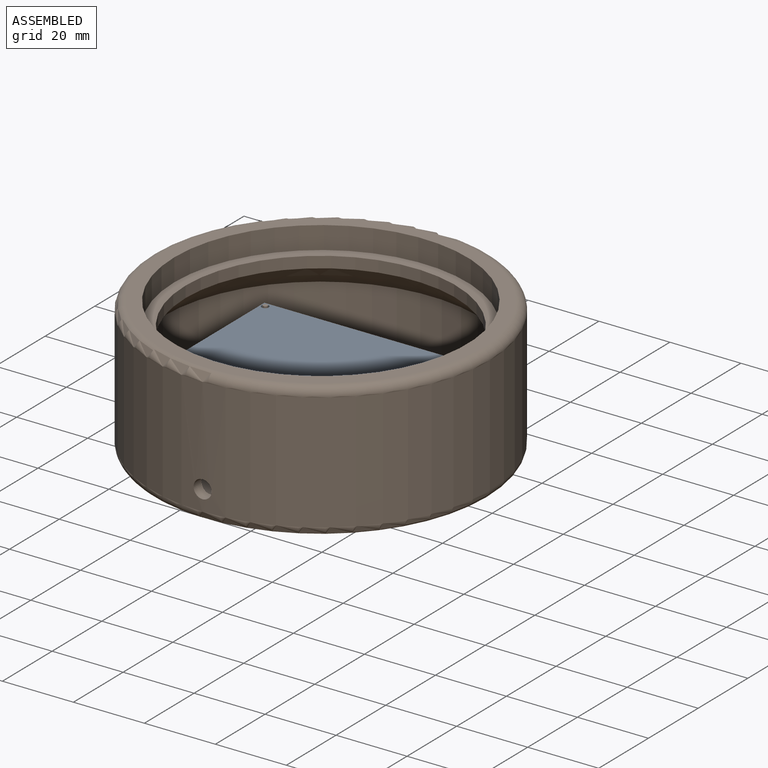
[diagram: assembled view]
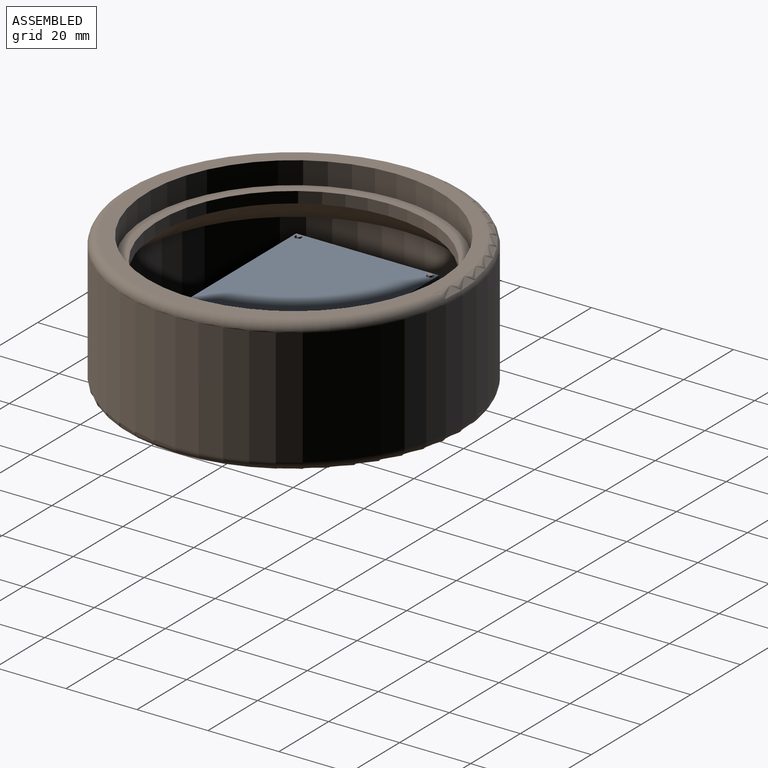
[diagram: assembled view, second angle]
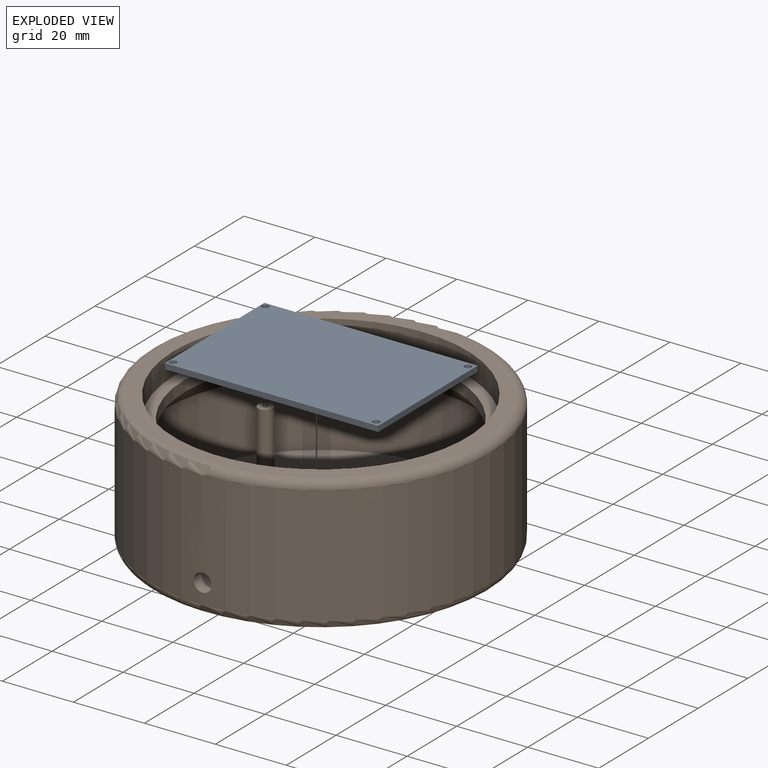
[diagram: exploded view]
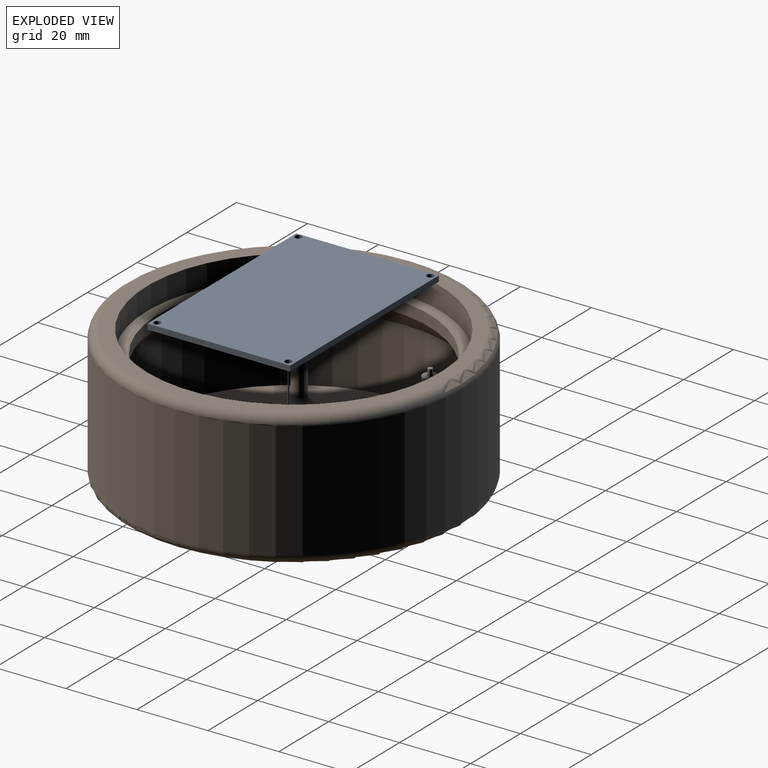
[diagram: exploded view, second angle]
ASSEMBLY  parts=2 mates=3
PART A: 10 faces, bbox 60x40.1x1.6 mm
  f0: plane 40.14x1.59mm, normal (1,0,0), area 63.7mm2, adj f1,f3,f4,f5
  f1: plane 60.01x1.59mm, normal (0,1,0), area 95.3mm2, adj f0,f2,f4,f5
  f2: plane 40.14x1.59mm, normal (-1,0,0), area 63.7mm2, adj f1,f3,f4,f5
  f3: plane 60.01x1.59mm, normal (0,-1,0), area 95.3mm2, adj f0,f2,f4,f5
  f4: plane 60.01x40.14mm, normal (0,0,1), area 2396.5mm2, adj f0,f1,f2,f3,f6,f7,f8,f9
  f5: plane 60.01x40.14mm, normal (0,0,-1), area 2396.5mm2, adj f0,f1,f2,f3,f6,f7,f8,f9
  f6: cylinder r=1mm len=1.99mm, axis (0,0,1), area 9.9mm2, adj f4,f5
  f7: cylinder r=1mm len=1.99mm, axis (0,0,1), area 9.9mm2, adj f4,f5
  f8: cylinder r=1mm len=1.99mm, axis (0,0,1), area 9.9mm2, adj f4,f5
  f9: cylinder r=1mm len=1.99mm, axis (0,0,1), area 9.9mm2, adj f4,f5
PART B: 32 faces, bbox 103.1x103.1x38.1 mm
  f0: plane 82.55x82.55mm, normal (0,0,1), area 791.7mm2, adj f1,f8
  f1: cylinder r=38.1mm len=76.2mm, axis (0,0,-1), area 760.1mm2, adj f0,f2
  f2: cone r=44.45mm half-angle=45deg, axis (0,0,-1), area 2328.9mm2, adj f1,f3
  f3: cylinder r=44.45mm len=88.9mm, axis (0,0,-1), area 5300.2mm2, adj f2,f4,f27
  f4: plane 88.9x88.9mm, normal (0,0,1), area 5944.5mm2, adj f3,f28,f29,f30,f31
  f5: plane 90.17x90.17mm, normal (0,0,-1), area 6385.8mm2, adj f9
  f6: cylinder r=47.62mm len=95.25mm, axis (0,0,-1), area 9860.5mm2, adj f9,f10,f27
  f7: plane 90.17x90.17mm, normal (0,0,1), area 1033.7mm2, adj f8,f10
  f8: cylinder r=41.27mm len=82.55mm, axis (0,0,-1), area 1646.8mm2, adj f0,f7
  f9: torus R=45.09mm, axis (0,0,1), area 1170.8mm2, adj f5,f6
  f10: torus R=45.09mm, axis (0,0,-1), area 1170.8mm2, adj f6,f7
  f11: cylinder r=2.03mm len=14.61mm, axis (0,0,-1), area 186.5mm2, adj f12,f31
  f12: plane 4.06x4.06mm, normal (0,0,1), area 11.7mm2, adj f11,f19
  f13: cylinder r=2.03mm len=14.61mm, axis (0,0,-1), area 186.5mm2, adj f14,f30
  f14: plane 4.06x4.06mm, normal (0,0,1), area 11.7mm2, adj f13,f21
  f15: cylinder r=2.03mm len=14.61mm, axis (0,0,-1), area 186.5mm2, adj f16,f29
  f16: plane 4.06x4.06mm, normal (0,0,1), area 11.7mm2, adj f15,f25
  f17: cylinder r=2.03mm len=14.61mm, axis (0,0,-1), area 186.5mm2, adj f18,f28
  f18: plane 4.06x4.06mm, normal (0,0,1), area 11.7mm2, adj f17,f23
  f19: cylinder r=0.64mm len=1.91mm, axis (0,0,-1), area 7.6mm2, adj f12,f20
  f20: plane 1.27x1.27mm, normal (0,0,1), area 1.3mm2, adj f19
  f21: cylinder r=0.64mm len=1.91mm, axis (0,0,-1), area 7.6mm2, adj f14,f22
  f22: plane 1.27x1.27mm, normal (0,0,1), area 1.3mm2, adj f21
  f23: cylinder r=0.64mm len=1.91mm, axis (0,0,-1), area 7.6mm2, adj f18,f24
  f24: plane 1.27x1.27mm, normal (0,0,1), area 1.3mm2, adj f23
  f25: cylinder r=0.64mm len=1.91mm, axis (0,0,-1), area 7.6mm2, adj f16,f26
  f26: plane 1.27x1.27mm, normal (0,0,1), area 1.3mm2, adj f25
  f27: cylinder r=2.54mm len=5.08mm, axis (0,-1,0), area 50.7mm2, adj f3,f6
  f28: torus R=4.57mm, axis (0,0,-1), area 74.1mm2, adj f4,f17
  f29: torus R=4.57mm, axis (0,0,-1), area 74.1mm2, adj f4,f15
  f30: torus R=4.57mm, axis (0,0,-1), area 74.1mm2, adj f4,f13
  f31: torus R=4.57mm, axis (0,0,-1), area 74.1mm2, adj f4,f11
PLACE A rot(axis=(0,0,1),0.1deg) t=(-0.13,-0.08,1.48)mm
PLACE B t=(-0.28,-0.03,-15.68)mm fixed
MATE parallel B.f17 <-> A.f5  axis (0,0,1) through (-28.82,-18.48,1.47)mm
MATE cylindrical A.f6 <-> B.f13  axis (0,0,1) through (28.25,18.42,3.07)mm
MATE cylindrical A.f9 <-> B.f15  axis (0,0,1) through (28.25,-18.48,3.07)mm
